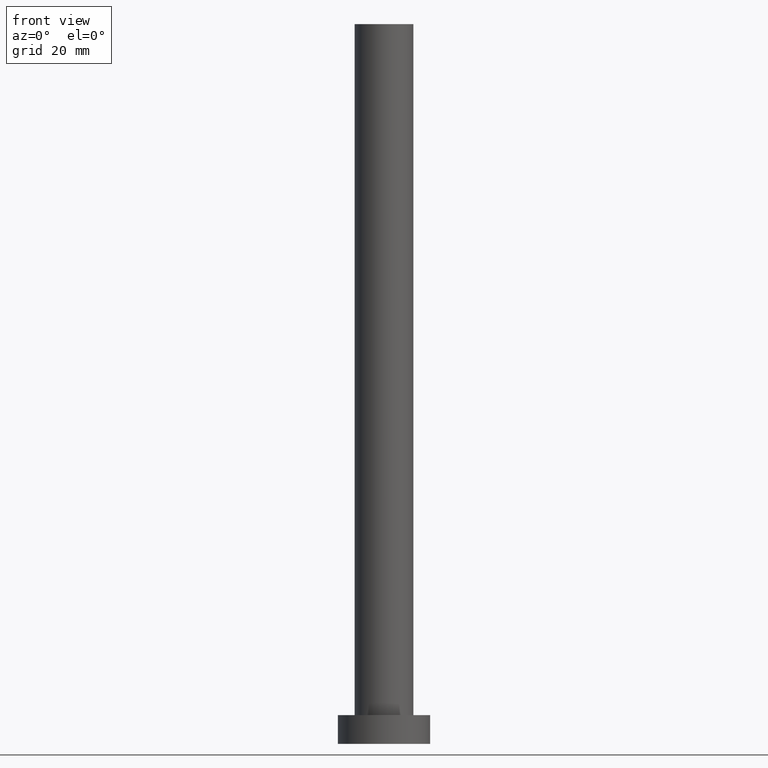
[diagram: clean part render]
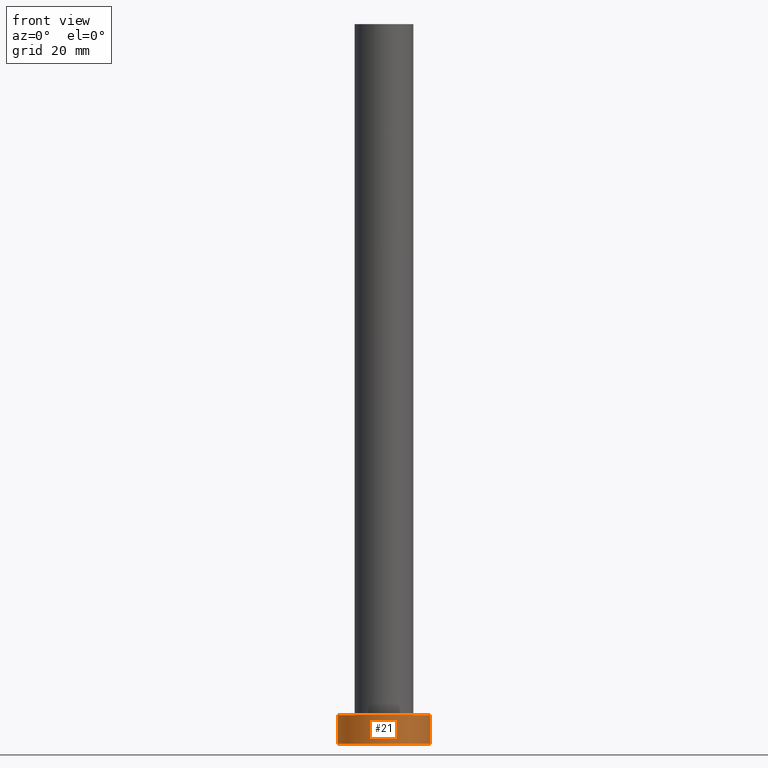
[diagram: same view with one face highlighted and labeled with its STEP entity id]
A machine part, front view. The second image highlights one B-rep face of the part: STEP entity #21.
In plain terms, the highlighted cylindrical surface (partial cylindrical patch) has radius 8 mm, axis along (-0, -0, -1).
Its self-contained STEP definition (entity closure, byte-faithful):
#1 = DIRECTION ( 'NONE',  ( -0.000000000000000000, -0.000000000000000000, -1.000000000000000000 ) ) ;
#21 = ADVANCED_FACE ( 'NONE', ( #80 ), #176, .T. ) ;
#29 = CARTESIAN_POINT ( 'NONE',  ( 0.000000000000000000, 0.000000000000000000, 0.000000000000000000 ) ) ;
#34 = ORIENTED_EDGE ( 'NONE', *, *, #141, .F. ) ;
#38 = LINE ( 'NONE', #56, #193 ) ;
#40 = AXIS2_PLACEMENT_3D ( 'NONE', #206, #187, #245 ) ;
#41 = DIRECTION ( 'NONE',  ( -0.000000000000000000, -0.000000000000000000, -1.000000000000000000 ) ) ;
#42 = DIRECTION ( 'NONE',  ( -1.000000000000000000, 0.000000000000000000, 0.000000000000000000 ) ) ;
#53 = CARTESIAN_POINT ( 'NONE',  ( -8.000000000000000000, 0.000000000000000000, 5.000000000000000000 ) ) ;
#55 = CIRCLE ( 'NONE', #40, 8.000000000000000000 ) ;
#56 = CARTESIAN_POINT ( 'NONE',  ( 8.000000000000000000, 9.797174393178825657E-16, 5.000000000000000000 ) ) ;
#58 = DIRECTION ( 'NONE',  ( 1.000000000000000000, 0.000000000000000000, 0.000000000000000000 ) ) ;
#80 = FACE_OUTER_BOUND ( 'NONE', #169, .T. ) ;
#88 = VECTOR ( 'NONE', #41, 1000.000000000000000 ) ;
#94 = VERTEX_POINT ( 'NONE', #255 ) ;
#96 = CARTESIAN_POINT ( 'NONE',  ( 0.000000000000000000, 0.000000000000000000, 5.000000000000000000 ) ) ;
#97 = DIRECTION ( 'NONE',  ( -0.000000000000000000, -0.000000000000000000, -1.000000000000000000 ) ) ;
#105 = CIRCLE ( 'NONE', #202, 8.000000000000000000 ) ;
#116 = ORIENTED_EDGE ( 'NONE', *, *, #174, .T. ) ;
#129 = ORIENTED_EDGE ( 'NONE', *, *, #209, .T. ) ;
#133 = VERTEX_POINT ( 'NONE', #135 ) ;
#135 = CARTESIAN_POINT ( 'NONE',  ( -8.000000000000000000, 0.000000000000000000, 0.000000000000000000 ) ) ;
#141 = EDGE_CURVE ( 'NONE', #168, #94, #38, .T. ) ;
#153 = LINE ( 'NONE', #53, #88 ) ;
#168 = VERTEX_POINT ( 'NONE', #223 ) ;
#169 = EDGE_LOOP ( 'NONE', ( #34, #192, #116, #129 ) ) ;
#174 = EDGE_CURVE ( 'NONE', #230, #133, #153, .T. ) ;
#176 = CYLINDRICAL_SURFACE ( 'NONE', #252, 8.000000000000000000 ) ;
#184 = CARTESIAN_POINT ( 'NONE',  ( -8.000000000000000000, 0.000000000000000000, 5.000000000000000000 ) ) ;
#187 = DIRECTION ( 'NONE',  ( 0.000000000000000000, 0.000000000000000000, 1.000000000000000000 ) ) ;
#192 = ORIENTED_EDGE ( 'NONE', *, *, #201, .F. ) ;
#193 = VECTOR ( 'NONE', #97, 1000.000000000000000 ) ;
#201 = EDGE_CURVE ( 'NONE', #230, #168, #55, .T. ) ;
#202 = AXIS2_PLACEMENT_3D ( 'NONE', #29, #243, #58 ) ;
#206 = CARTESIAN_POINT ( 'NONE',  ( 0.000000000000000000, 0.000000000000000000, 5.000000000000000000 ) ) ;
#209 = EDGE_CURVE ( 'NONE', #133, #94, #105, .T. ) ;
#223 = CARTESIAN_POINT ( 'NONE',  ( 8.000000000000000000, 9.797174393178825657E-16, 5.000000000000000000 ) ) ;
#230 = VERTEX_POINT ( 'NONE', #184 ) ;
#243 = DIRECTION ( 'NONE',  ( 0.000000000000000000, 0.000000000000000000, 1.000000000000000000 ) ) ;
#245 = DIRECTION ( 'NONE',  ( 1.000000000000000000, 0.000000000000000000, 0.000000000000000000 ) ) ;
#252 = AXIS2_PLACEMENT_3D ( 'NONE', #96, #1, #42 ) ;
#255 = CARTESIAN_POINT ( 'NONE',  ( 8.000000000000000000, 9.797174393178825657E-16, 0.000000000000000000 ) ) ;